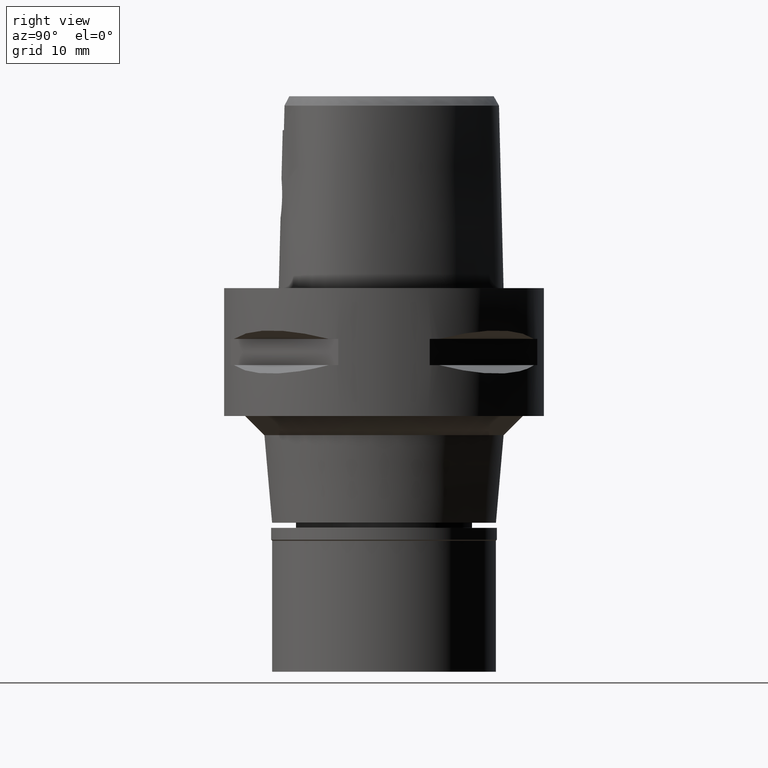
[diagram: clean part render]
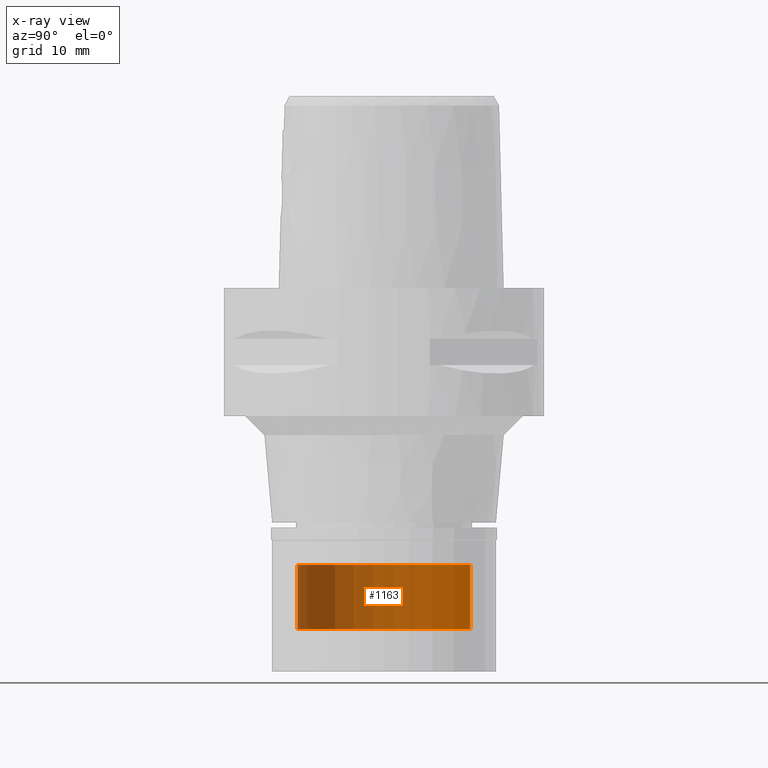
[diagram: x-ray — body ghosted, one internal face saturated and labeled with its STEP entity id]
A machine part, right view, then the same camera in x-ray: the body is ghosted and one INTERNAL B-rep face — a face not visible from any outside direction — is saturated and labeled: STEP entity #1163.
In plain terms, the highlighted cylindrical surface (partial cylindrical patch) has radius 13.5 mm, axis along (0, 0, -1).
Its self-contained STEP definition (entity closure, byte-faithful):
#140 = CARTESIAN_POINT ( 'NONE',  ( 0.0000000000000000000, 1.257283636345000040E-14, 2.665000000000000036 ) ) ;
#391 = ORIENTED_EDGE ( 'NONE', *, *, #2180, .T. ) ;
#611 = VERTEX_POINT ( 'NONE', #779 ) ;
#779 = CARTESIAN_POINT ( 'NONE',  ( 0.0000000000000000000, -13.50000000000000000, -53.29999999999999716 ) ) ;
#803 = VERTEX_POINT ( 'NONE', #2854 ) ;
#825 = AXIS2_PLACEMENT_3D ( 'NONE', #140, #1248, #1568 ) ;
#913 = VECTOR ( 'NONE', #2898, 1000.000000000000000 ) ;
#1105 = CARTESIAN_POINT ( 'NONE',  ( 0.0000000000000000000, -13.50000000000000000, -43.29999999999999716 ) ) ;
#1163 = ADVANCED_FACE ( 'NONE', ( #3434 ), #2030, .T. ) ;
#1248 = DIRECTION ( 'NONE',  ( 0.0000000000000000000, 0.0000000000000000000, -1.000000000000000000 ) ) ;
#1310 = DIRECTION ( 'NONE',  ( 0.0000000000000000000, 0.0000000000000000000, 1.000000000000000000 ) ) ;
#1385 = VERTEX_POINT ( 'NONE', #3907 ) ;
#1430 = DIRECTION ( 'NONE',  ( 0.0000000000000000000, 0.0000000000000000000, -1.000000000000000000 ) ) ;
#1568 = DIRECTION ( 'NONE',  ( 0.0000000000000000000, -1.000000000000000000, 0.0000000000000000000 ) ) ;
#1721 = CARTESIAN_POINT ( 'NONE',  ( 0.0000000000000000000, 13.50000000000000000, -53.29999999999999716 ) ) ;
#1868 = EDGE_CURVE ( 'NONE', #1385, #611, #4110, .T. ) ;
#1994 = EDGE_LOOP ( 'NONE', ( #391, #3970, #3554, #3082 ) ) ;
#2030 = CYLINDRICAL_SURFACE ( 'NONE', #825, 13.50000000000000000 ) ;
#2180 = EDGE_CURVE ( 'NONE', #3987, #611, #3847, .T. ) ;
#2371 = EDGE_CURVE ( 'NONE', #1385, #803, #3926, .T. ) ;
#2459 = AXIS2_PLACEMENT_3D ( 'NONE', #4726, #1430, #4002 ) ;
#2788 = DIRECTION ( 'NONE',  ( 0.0000000000000000000, 1.000000000000000000, 0.0000000000000000000 ) ) ;
#2854 = CARTESIAN_POINT ( 'NONE',  ( 0.0000000000000000000, 13.50000000000000000, -43.29999999999999716 ) ) ;
#2898 = DIRECTION ( 'NONE',  ( 0.0000000000000000000, 0.0000000000000000000, -1.000000000000000000 ) ) ;
#3082 = ORIENTED_EDGE ( 'NONE', *, *, #3682, .T. ) ;
#3296 = CARTESIAN_POINT ( 'NONE',  ( 0.0000000000000000000, 13.50000000000000000, -43.29999999999999716 ) ) ;
#3434 = FACE_OUTER_BOUND ( 'NONE', #1994, .T. ) ;
#3554 = ORIENTED_EDGE ( 'NONE', *, *, #2371, .T. ) ;
#3669 = DIRECTION ( 'NONE',  ( 0.0000000000000000000, 0.0000000000000000000, -1.000000000000000000 ) ) ;
#3682 = EDGE_CURVE ( 'NONE', #803, #3987, #4042, .T. ) ;
#3847 = CIRCLE ( 'NONE', #4310, 13.50000000000000000 ) ;
#3907 = CARTESIAN_POINT ( 'NONE',  ( 0.0000000000000000000, -13.50000000000000000, -43.29999999999999716 ) ) ;
#3926 = CIRCLE ( 'NONE', #2459, 13.50000000000000000 ) ;
#3930 = CARTESIAN_POINT ( 'NONE',  ( 0.0000000000000000000, 1.257283636345000040E-14, -53.29999999999999716 ) ) ;
#3945 = VECTOR ( 'NONE', #3669, 1000.000000000000000 ) ;
#3970 = ORIENTED_EDGE ( 'NONE', *, *, #1868, .F. ) ;
#3987 = VERTEX_POINT ( 'NONE', #1721 ) ;
#4002 = DIRECTION ( 'NONE',  ( 0.0000000000000000000, -1.000000000000000000, 0.0000000000000000000 ) ) ;
#4042 = LINE ( 'NONE', #3296, #3945 ) ;
#4110 = LINE ( 'NONE', #1105, #913 ) ;
#4310 = AXIS2_PLACEMENT_3D ( 'NONE', #3930, #1310, #2788 ) ;
#4726 = CARTESIAN_POINT ( 'NONE',  ( 0.0000000000000000000, 1.257283636345000040E-14, -43.29999999999999716 ) ) ;